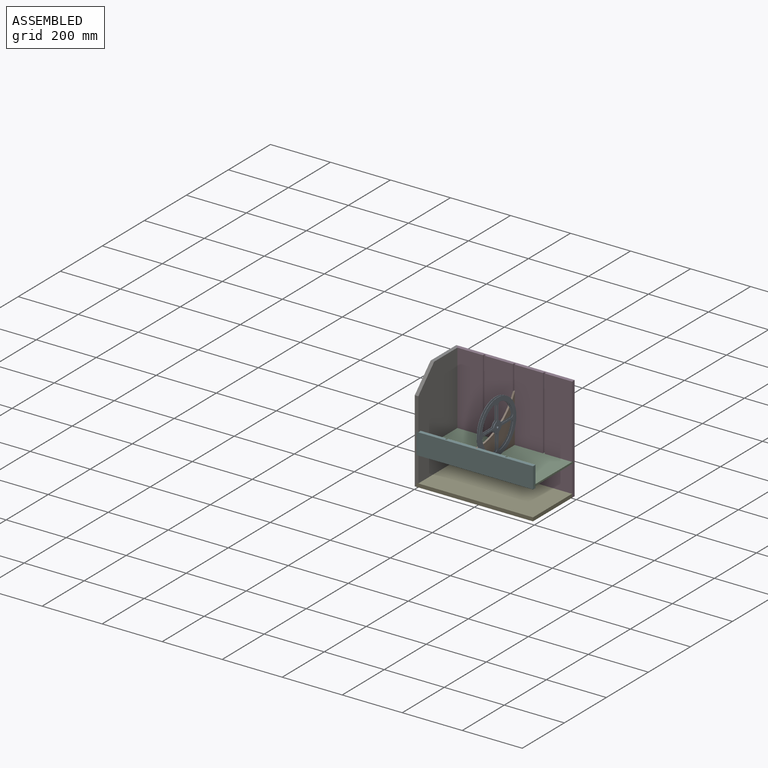
[diagram: assembled view]
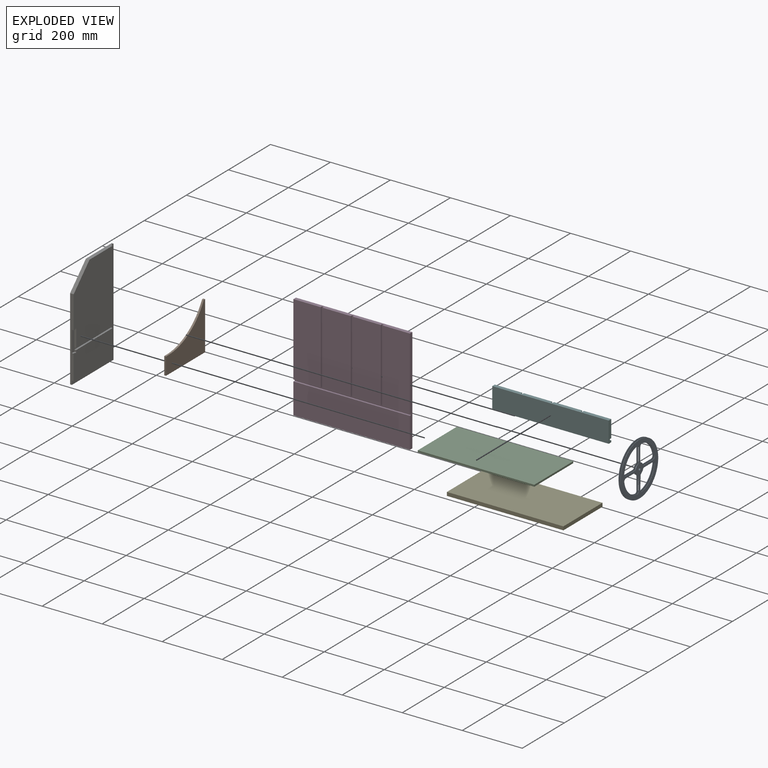
[diagram: exploded view]
GUIDED TOUR — MATED ASSEMBLY (Onshape document a16f4ff0c23ec9828e6b95ff, AutoMate assembly a16f4ff0c23ec9828e6b95ff_91c9aadeaeb00010fbe6a718_039b03f0357e371f45cd246d_default)

This assembly has 7 components, labeled P0..P6 below (a component is one placed occurrence of a part; the same part can appear more than once), held together by 6 mates. A mate is a constraint between two components; its type names the relative motion it leaves free:
  FASTENED — locks the two components together rigidly (no relative motion),
  PARALLEL — keeps the two listed directions parallel.
Axis/direction vectors are unit vectors and 'through' points are millimeter coordinates, both in the assembly's world frame.

MATES
  1. FASTENED "Fastened 5": P6 <-> P4, direction (1.000, 0.000, 0.000) through (6.00, -198.00, 12.00) mm
  2. FASTENED "Fastened 4": P6 <-> P5, direction (1.000, 0.000, 0.000) through (6.00, -198.00, 96.00) mm
  3. FASTENED "Fastened 6": P1 <-> P5, direction (1.000, 0.000, 0.000) through (203.00, -192.00, 166.00) mm
  4. FASTENED "Fastened 2": P3 <-> P6, direction (-1.000, 0.000, 0.000) through (6.00, 0.00, 0.00) mm
  5. PARALLEL "Parallel 1": P0 <-> P1, direction (-1.000, 0.000, 0.000) through (202.12, -103.45, 199.06) mm
  6. FASTENED "Fastened 3": P2 <-> P5, direction (-1.000, 0.000, 0.000) through (394.00, -192.00, 108.00) mm

ASSEMBLY ORDER
  1. P2 — the base component [order verified]
  2. P5 [order verified]
  3. P3 [order verified]
  4. P1 [order verified]
  5. P4 [order verified]
  6. P0 [order verified]
  7. P6 [order verified]
Order-tag legend:
  [order verified] — this step's position reverses a verified removal order: the component was checked to insert without passing through the ones already placed.

Of the 7 components, 1 carries the full construction recipe — the FeatureScript program that regenerates the part's solid from scratch; the rest are supplied as boundary geometry only.
Each toured component is shown spotlighted twice — in the assembled view, then in the exploded view, where a leader line traces a displaced component back to its assembled socket (saturated green if recipe-attached, orange if geometry-only; every other component desaturated gray) — followed by its recipe or geometry summary and the mates that hold it.
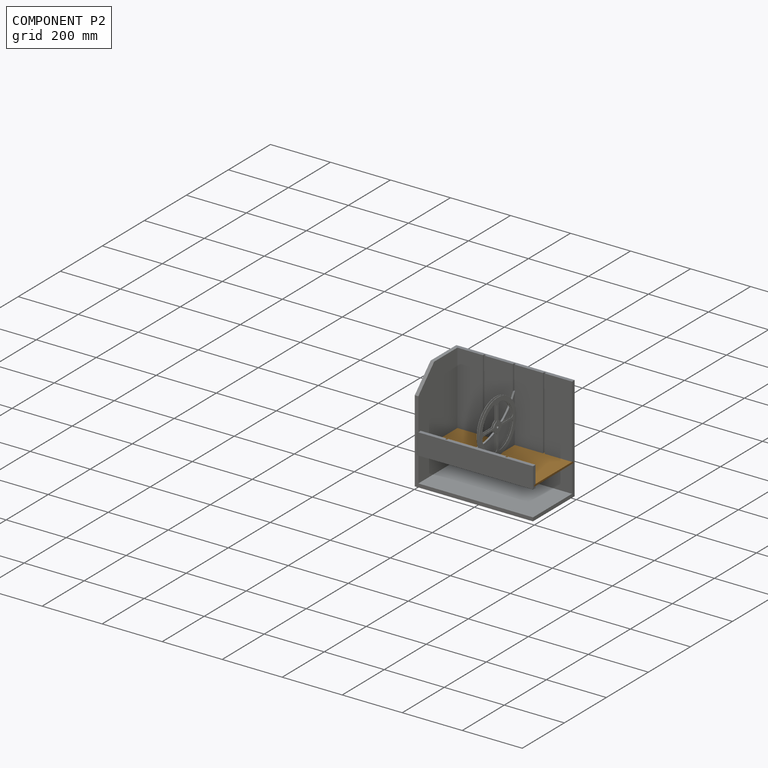
[diagram: component P2 — assembled]
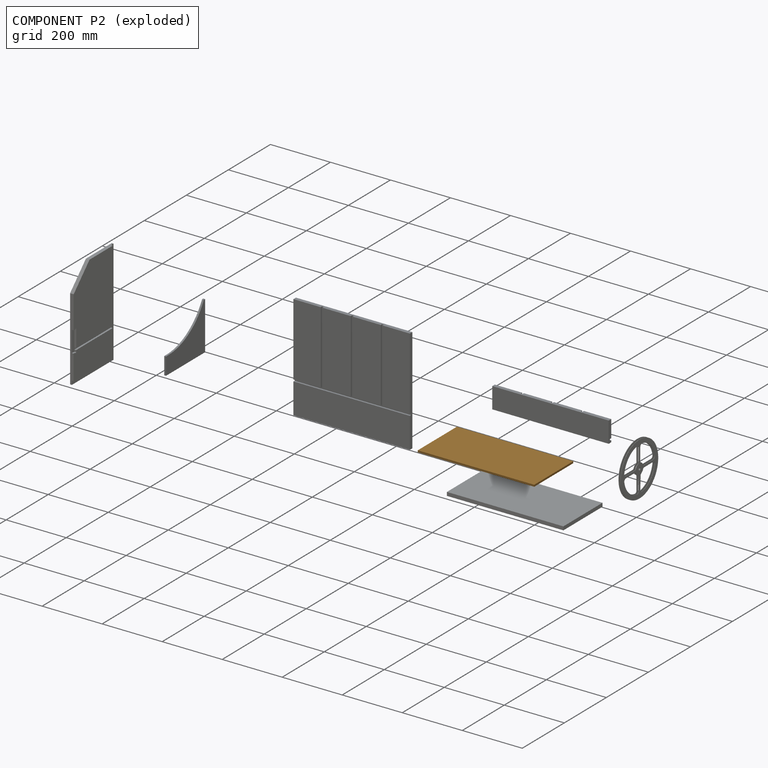
[diagram: component P2 — exploded]
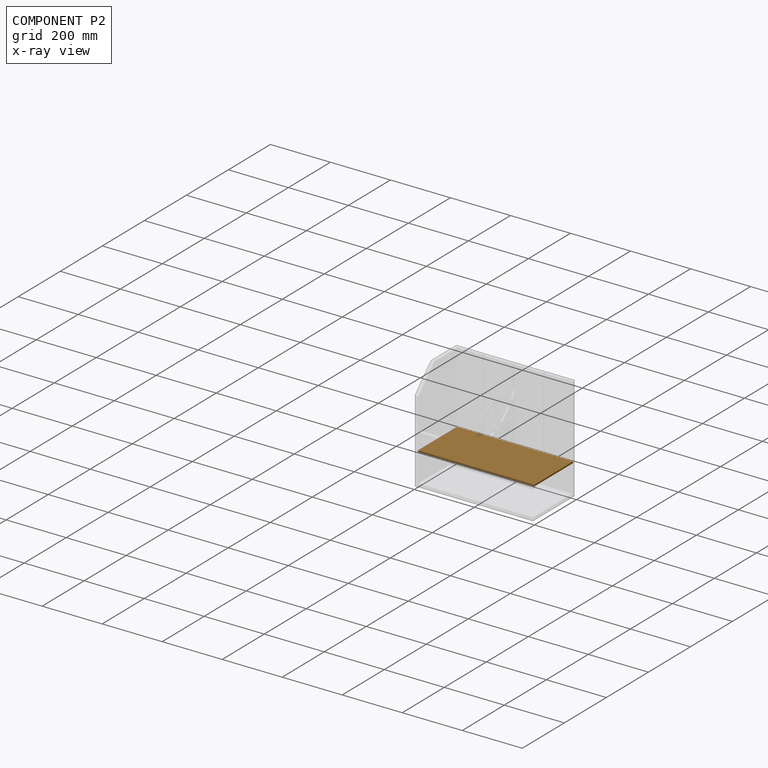
[diagram: component P2 — x-ray view]
COMPONENT P2 — geometry summary (no construction recipe available for this part):
  bounding box: 388.0 x 186.0 x 6.0 mm
  B-rep topology: 1 solid, 6 faces, 24 edges
  volume: 433008 mm^3 (100% of its bounding box)
  symmetry: 2-fold rotationally symmetric about the x axis; 2-fold rotationally symmetric about the y axis; 2-fold rotationally symmetric about the z axis; mirror-symmetric across its x mid-plane, y mid-plane, z mid-plane
Held by: FASTENED mate "Fastened 3" to P5.
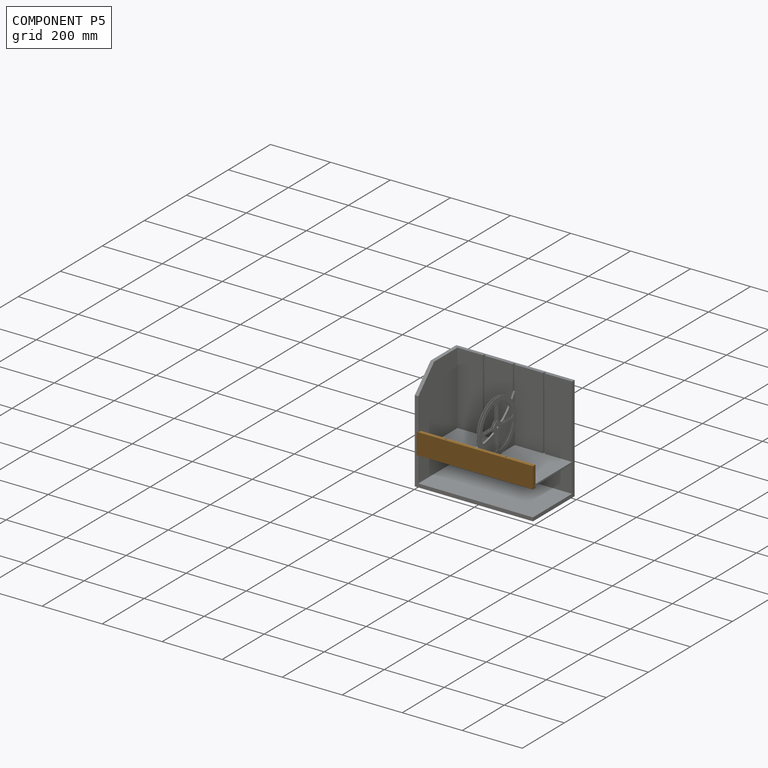
[diagram: component P5 — assembled]
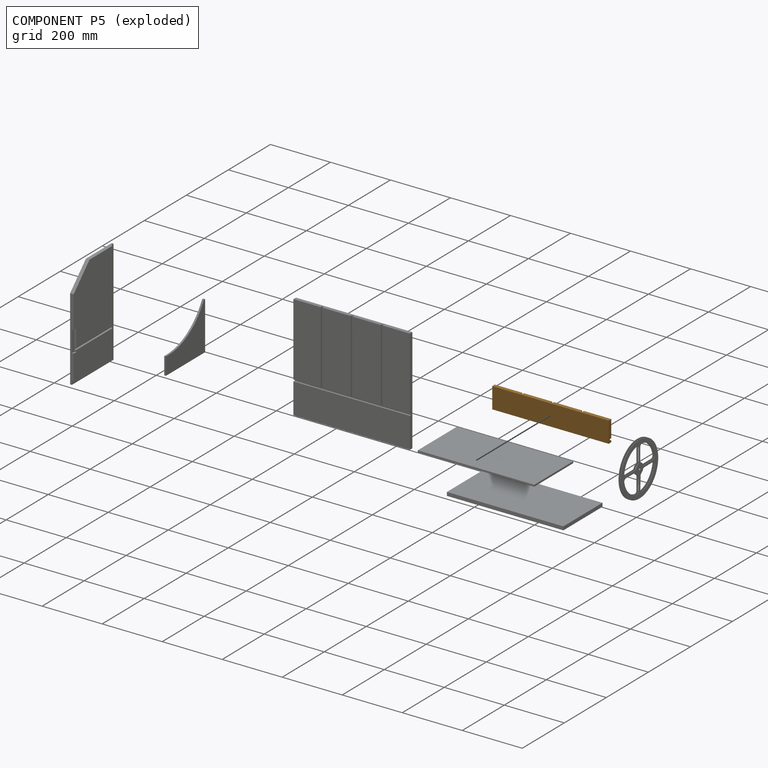
[diagram: component P5 — exploded]
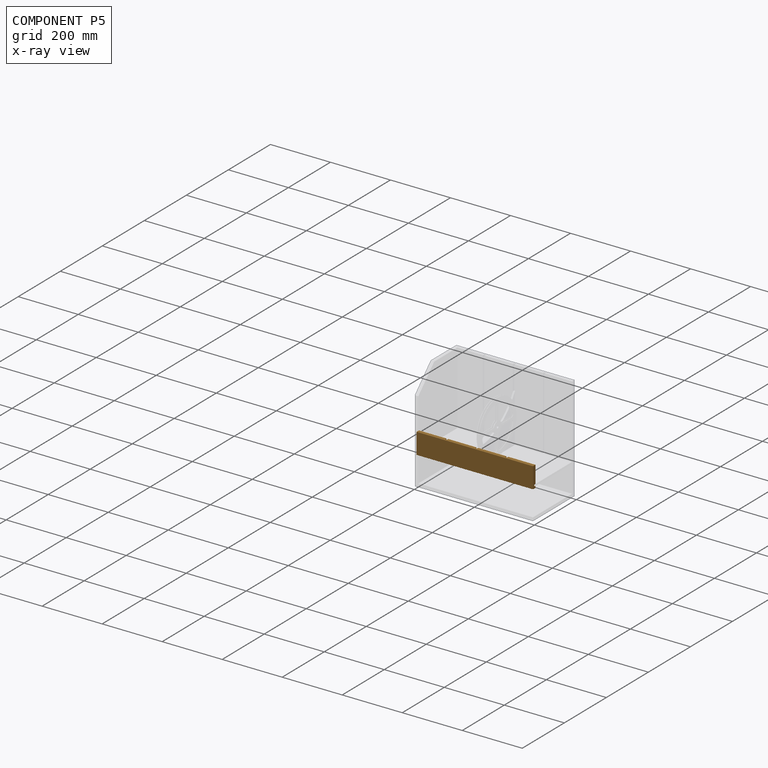
[diagram: component P5 — x-ray view]
COMPONENT P5 — geometry summary (no construction recipe available for this part):
  bounding box: 388.0 x 70.0 x 12.0 mm
  B-rep topology: 1 solid, 22 faces, 120 edges
  volume: 305688 mm^3 (94% of its bounding box)
  symmetry: mirror-symmetric across its y mid-plane
Held by: FASTENED mate "Fastened 4" to P6; FASTENED mate "Fastened 6" to P1; FASTENED mate "Fastened 3" to P2.
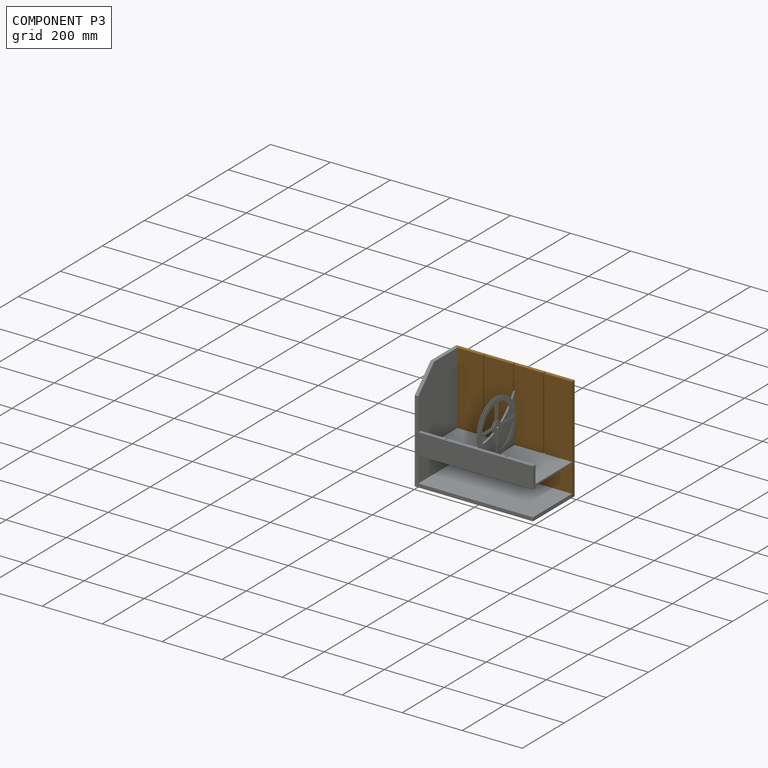
[diagram: component P3 — assembled]
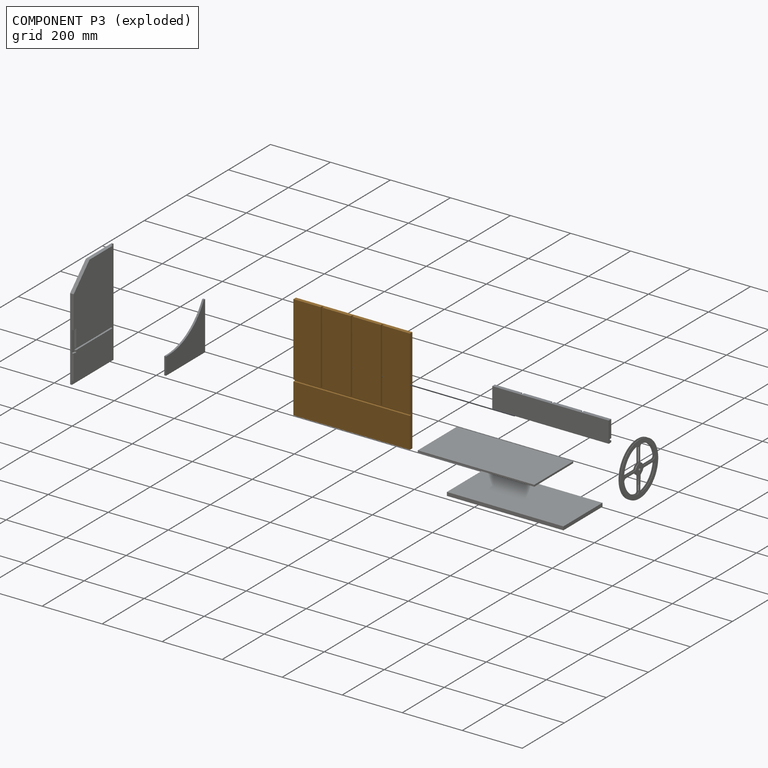
[diagram: component P3 — exploded]
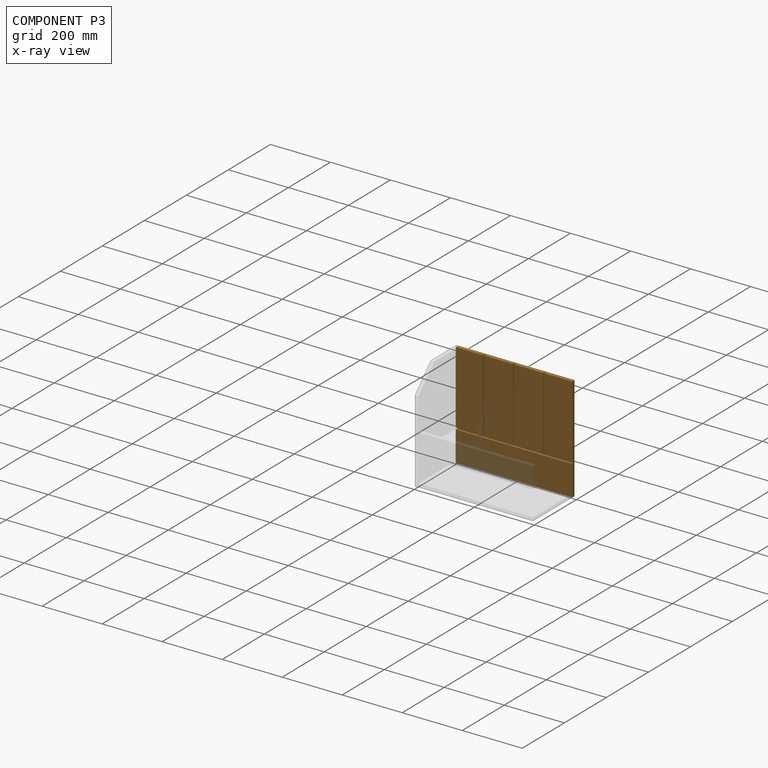
[diagram: component P3 — x-ray view]
COMPONENT P3 — geometry summary (no construction recipe available for this part):
  bounding box: 388.0 x 350.0 x 12.0 mm
  B-rep topology: 1 solid, 22 faces, 120 edges
  volume: 1589496 mm^3 (98% of its bounding box)
  symmetry: mirror-symmetric across its y mid-plane
Held by: FASTENED mate "Fastened 2" to P6.
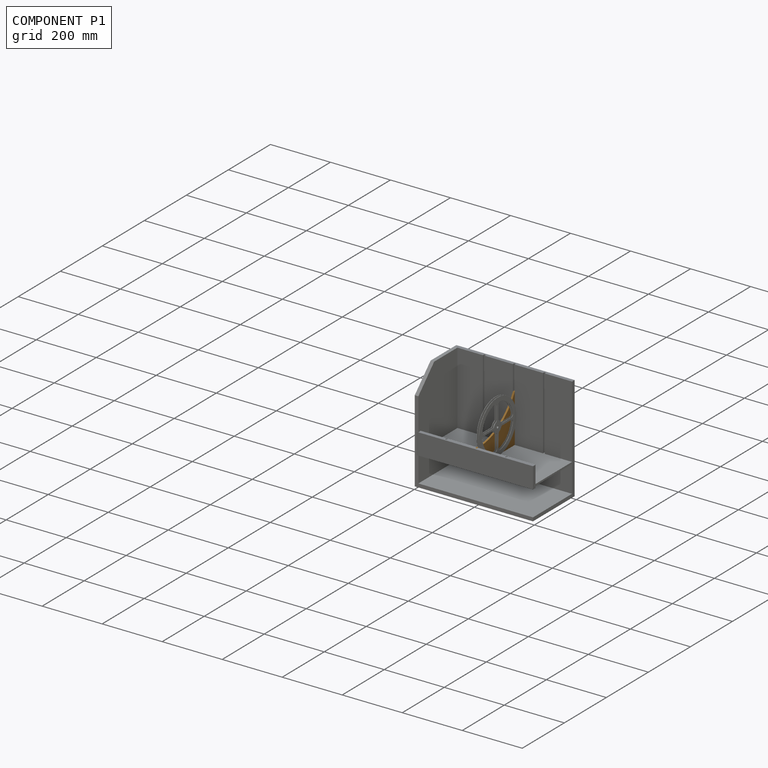
[diagram: component P1 — assembled]
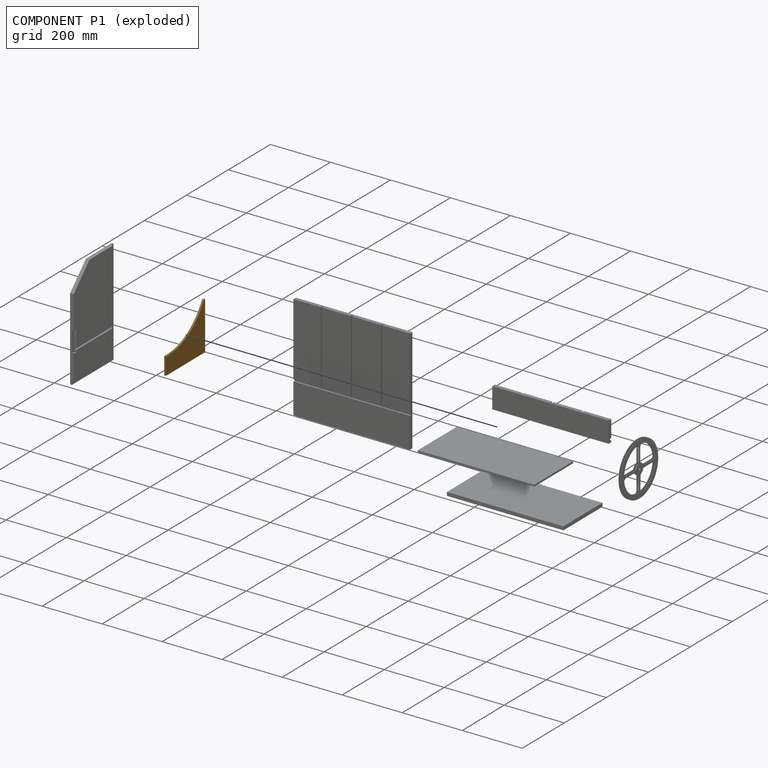
[diagram: component P1 — exploded]
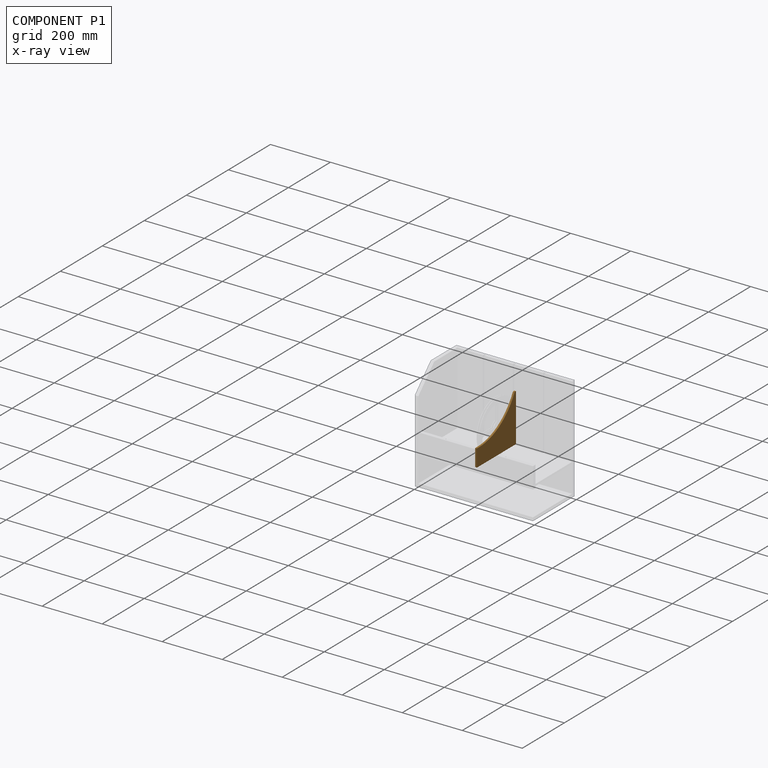
[diagram: component P1 — x-ray view]
COMPONENT P1 — geometry summary (no construction recipe available for this part):
  bounding box: 186.0 x 160.0 x 6.0 mm
  B-rep topology: 1 solid, 8 faces, 36 edges
  volume: 98316 mm^3 (55% of its bounding box)
  symmetry: mirror-symmetric across its y mid-plane
Held by: FASTENED mate "Fastened 6" to P5; PARALLEL mate "Parallel 1" to P0.
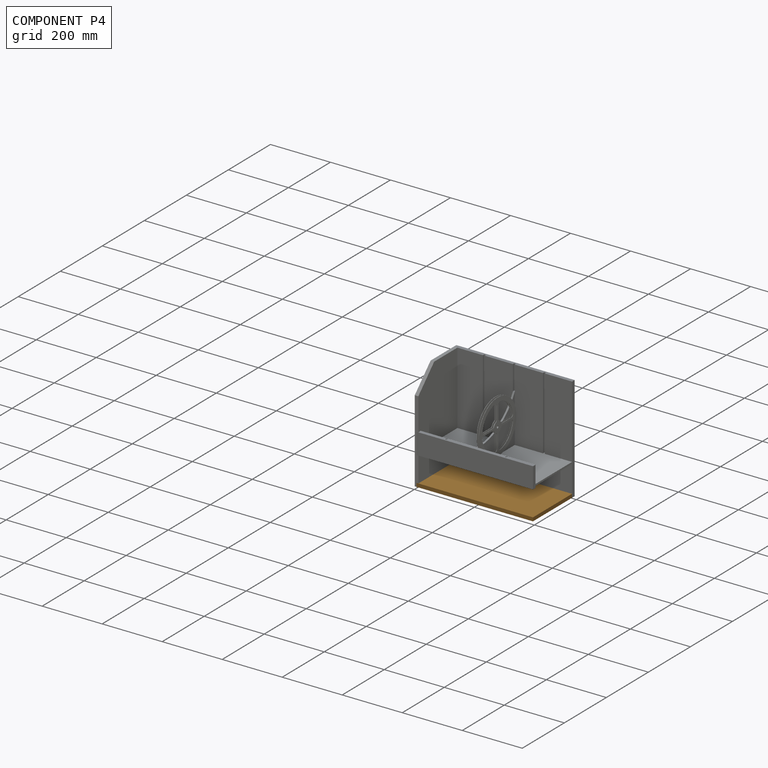
[diagram: component P4 — assembled]
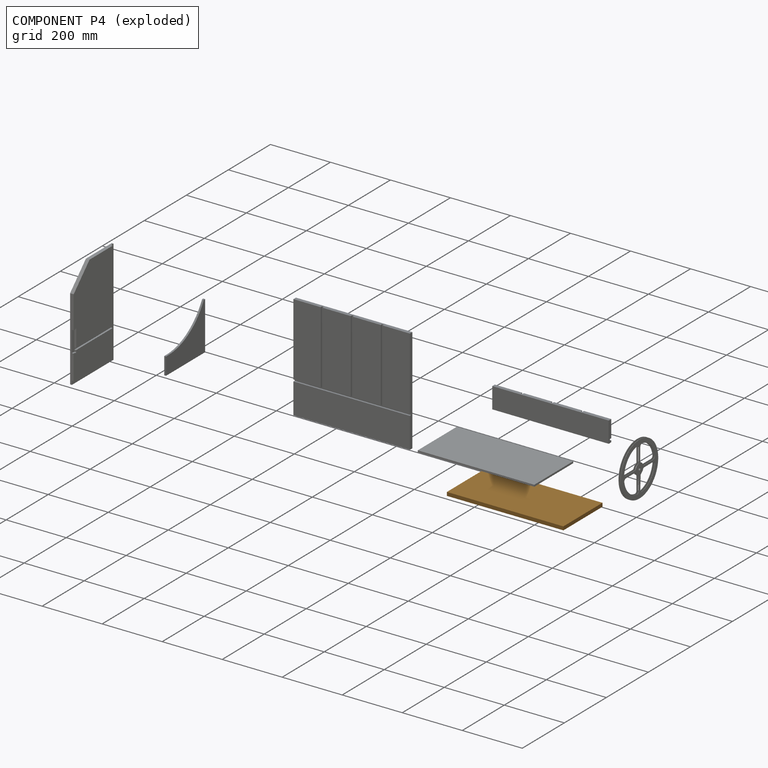
[diagram: component P4 — exploded]
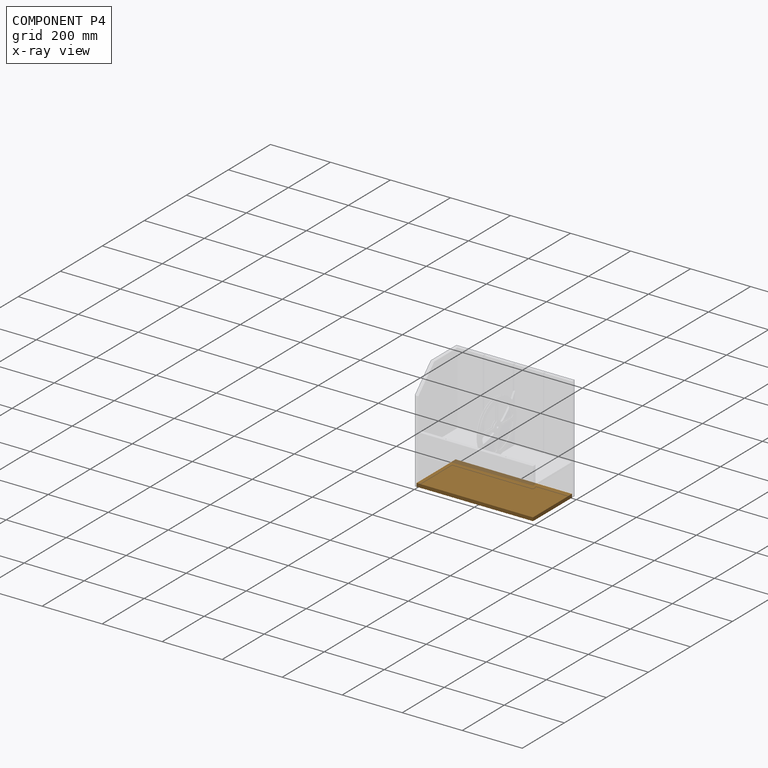
[diagram: component P4 — x-ray view]
COMPONENT P4 — geometry summary (no construction recipe available for this part):
  bounding box: 388.0 x 186.0 x 12.0 mm
  B-rep topology: 1 solid, 6 faces, 24 edges
  volume: 866016 mm^3 (100% of its bounding box)
  symmetry: 2-fold rotationally symmetric about the x axis; 2-fold rotationally symmetric about the y axis; 2-fold rotationally symmetric about the z axis; mirror-symmetric across its x mid-plane, y mid-plane, z mid-plane
Held by: FASTENED mate "Fastened 5" to P6.
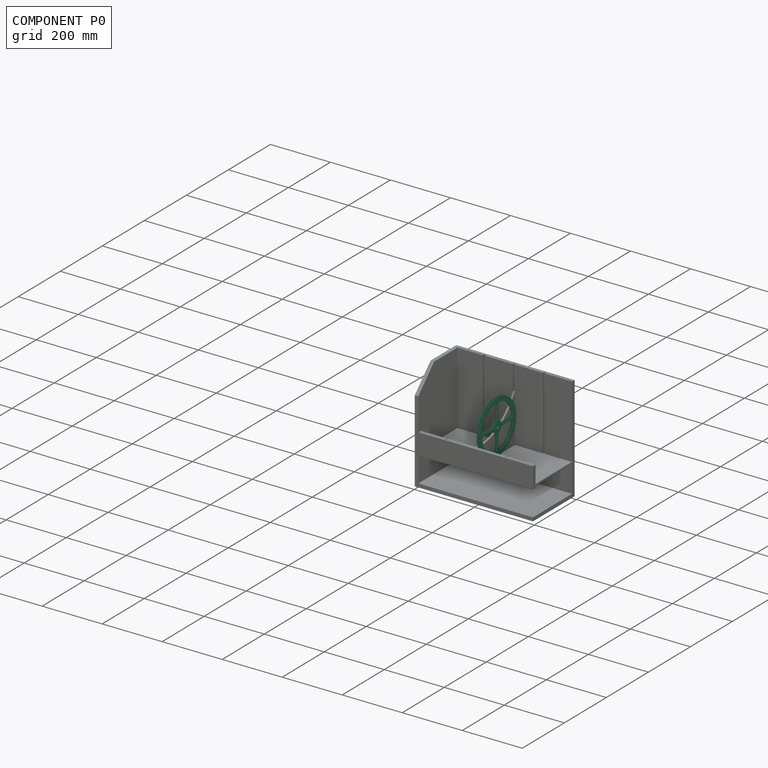
[diagram: component P0 — assembled]
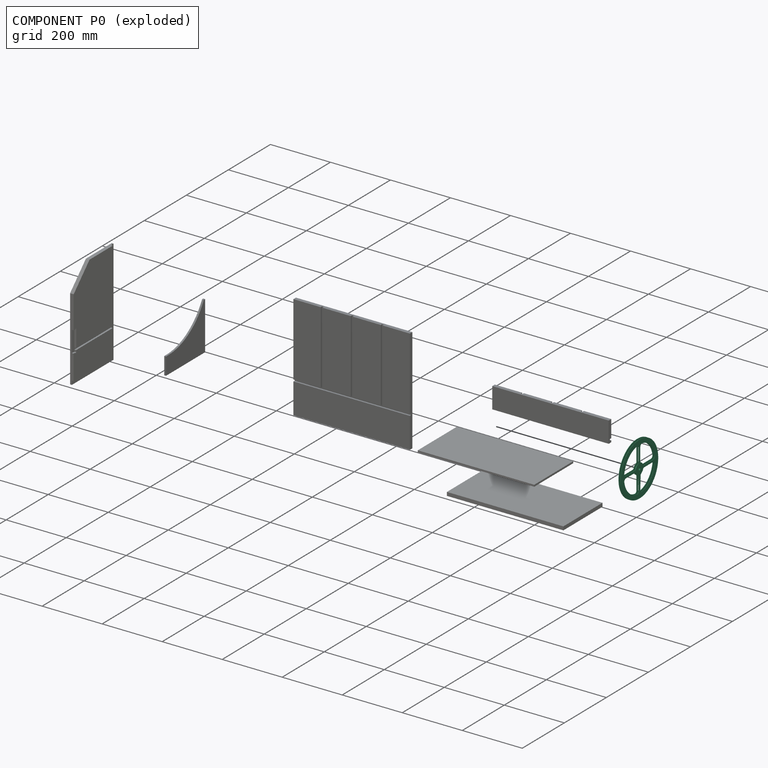
[diagram: component P0 — exploded]
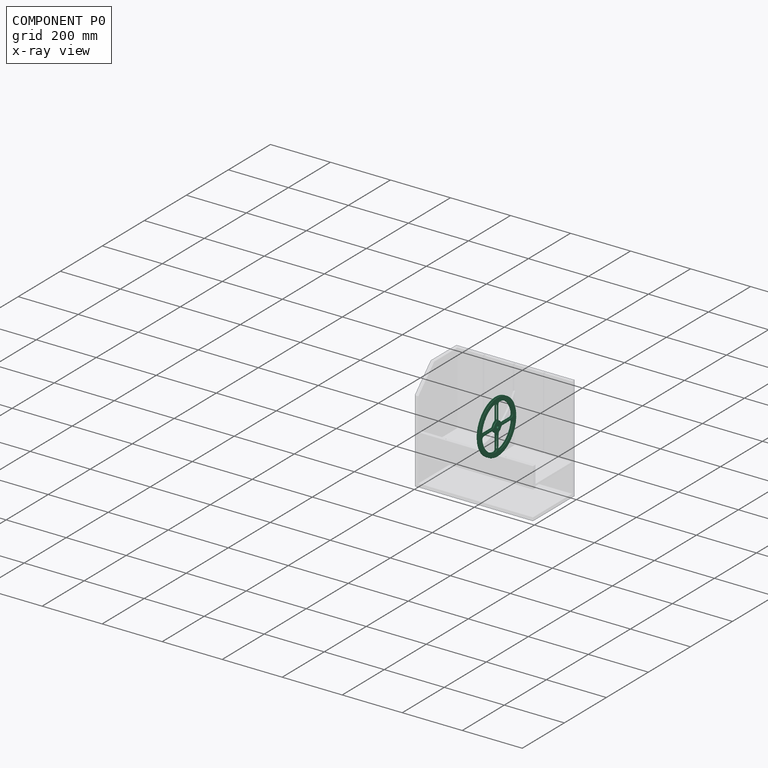
[diagram: component P0 — x-ray view]
COMPONENT P0 — recipe-attached (CADFS 00826286, mesh-verified: the recipe's output STEP matches this component's geometry to below the mesh-comparison resolution (tessellation chordal tolerance ~0.377 mm)).
Held by: PARALLEL mate "Parallel 1" to P1.
Construction recipe (FeatureScript — the CAD program that rebuilds this solid; sketch coordinates are in the units given by the * unit suffixes, e.g. mm):

FeatureScript 1511;
import(path : "onshape/std/geometry.fs", version : "1511.0");
import(path : "onshape/std/common.fs", version : "1511.0");
const mm = millimeter;
const VERTEX = EntityType.VERTEX;
const EDGE = EntityType.EDGE;
const FACE = EntityType.FACE;
const BODY = EntityType.BODY;
function v(x, y){return vector(x, y);}
function OD(order){return orderDisambiguation(order);}
function OSD(set){return originalSetDisambiguation(set);}
function TD(topology){return topologyDisambiguation(topology);}
function TDD(query){return trueDependencyDisambiguation(query);}
function sQuery(a, b, c) {return sketchEntityQuery(a, b, c);}

annotation { "Feature Type Name" : "Feature", "Feature Type Description" : "" }
export const myFeature = defineFeature(function(context is Context, id is Id, definition is map)
    precondition{}
    {
        {
            var Q0;
            Q0=qCreatedBy(makeId("Top.planeOp"),FACE);
            var sketch = newSketch(context, id + "F0", { "sketchPlane" : qUnion([Q0])});
            skCircle(sketch, "E0", {"center": v(0, 0) * mm, "radius": 88.9 * mm});
            skArc(sketch, "E1", {"start": v(-12.9, 72.65) * mm, "mid": v(-52.17, 52.17) * mm, "end": v(-72.65, 12.9) * mm});
            skLineSegment(sketch, "E2", {"start": v(-64.77, 3.5) * mm, "end": v(-22.27, 3.5) * mm});
            skLineSegment(sketch, "E3", {"start": v(-3.5, 64.77) * mm, "end": v(-3.5, 22.27) * mm});
            skLineSegment(sketch, "E4.MirrorCS", {"start": v(-64.77, -3.5) * mm, "end": v(-22.27, -3.5) * mm});
            skLineSegment(sketch, "E5.MirrorCS", {"start": v(3.5, 64.77) * mm, "end": v(3.5, 22.27) * mm});
            skArc(sketch, "E6.trimOffspring", {"start": v(72.65, 12.9) * mm, "mid": v(52.17, 52.17) * mm, "end": v(12.9, 72.65) * mm});
            skArc(sketch, "E7.trimOffspring", {"start": v(12.9, -72.65) * mm, "mid": v(52.17, -52.17) * mm, "end": v(72.65, -12.9) * mm});
            skArc(sketch, "E8.trimOffspring", {"start": v(-72.65, -12.9) * mm, "mid": v(-52.17, -52.17) * mm, "end": v(-12.9, -72.65) * mm});
            skPoint(sketch, "E9.visualSharp", {"position": v(-3.5, 73.7) * mm});
            skArc(sketch, "E9.filletArc", {"start": v(-3.5, 64.77) * mm, "mid": v(-6.36, 70.9) * mm, "end": v(-12.9, 72.65) * mm});
            skPoint(sketch, "E10.visualSharp", {"position": v(3.5, 73.7) * mm});
            skArc(sketch, "E10.filletArc", {"start": v(12.9, 72.65) * mm, "mid": v(6.36, 70.9) * mm, "end": v(3.5, 64.77) * mm});
            skPoint(sketch, "E11.visualSharp", {"position": v(73.7, 3.5) * mm});
            skArc(sketch, "E11.filletArc", {"start": v(64.77, 3.5) * mm, "mid": v(70.9, 6.36) * mm, "end": v(72.65, 12.9) * mm});
            skPoint(sketch, "E12.visualSharp", {"position": v(73.7, -3.5) * mm});
            skArc(sketch, "E12.filletArc", {"start": v(72.65, -12.9) * mm, "mid": v(70.9, -6.36) * mm, "end": v(64.77, -3.5) * mm});
            skPoint(sketch, "E13.visualSharp", {"position": v(3.5, -73.7) * mm});
            skArc(sketch, "E13.filletArc", {"start": v(3.5, -64.77) * mm, "mid": v(6.36, -70.9) * mm, "end": v(12.9, -72.65) * mm});
            skPoint(sketch, "E14.visualSharp", {"position": v(-3.5, -73.7) * mm});
            skArc(sketch, "E14.filletArc", {"start": v(-12.9, -72.65) * mm, "mid": v(-6.36, -70.9) * mm, "end": v(-3.5, -64.77) * mm});
            skPoint(sketch, "E15.visualSharp", {"position": v(-73.7, -3.5) * mm});
            skArc(sketch, "E15.filletArc", {"start": v(-64.77, -3.5) * mm, "mid": v(-70.9, -6.36) * mm, "end": v(-72.65, -12.9) * mm});
            skPoint(sketch, "E16.visualSharp", {"position": v(-73.7, 3.5) * mm});
            skArc(sketch, "E16.filletArc", {"start": v(-72.65, 12.9) * mm, "mid": v(-70.9, 6.36) * mm, "end": v(-64.77, 3.5) * mm});
            skArc(sketch, "E17", {"start": v(16.75, 7.15) * mm, "mid": v(12.88, 12.88) * mm, "end": v(7.15, 16.75) * mm});
            skLineSegment(sketch, "E18.trimOffspring", {"start": v(3.5, -22.27) * mm, "end": v(3.5, -64.77) * mm});
            skLineSegment(sketch, "E19.trimOffspring", {"start": v(-3.5, -22.27) * mm, "end": v(-3.5, -64.77) * mm});
            skLineSegment(sketch, "E20.trimOffspring", {"start": v(22.27, 3.5) * mm, "end": v(64.77, 3.5) * mm});
            skLineSegment(sketch, "E21.trimOffspring", {"start": v(21.3, -5.11) * mm, "end": v(64.77, -3.5) * mm});
            skCircle(sketch, "E22", {"center": v(0, 0) * mm, "radius": 4 * mm});
            skArc(sketch, "E23.trimOffspring", {"start": v(7.15, -16.75) * mm, "mid": v(12.4, -13.34) * mm, "end": v(16.18, -8.36) * mm});
            skArc(sketch, "E24.trimOffspring", {"start": v(-16.75, -7.15) * mm, "mid": v(-12.88, -12.88) * mm, "end": v(-7.15, -16.75) * mm});
            skArc(sketch, "E25.trimOffspring", {"start": v(-7.15, 16.75) * mm, "mid": v(-12.88, 12.88) * mm, "end": v(-16.75, 7.15) * mm});
            skPoint(sketch, "E26.visualSharp", {"position": v(-3.5, 17.88) * mm});
            skArc(sketch, "E26.filletArc", {"start": v(-7.15, 16.75) * mm, "mid": v(-4.5, 18.97) * mm, "end": v(-3.5, 22.27) * mm});
            skPoint(sketch, "E27.visualSharp", {"position": v(17.88, 3.5) * mm});
            skArc(sketch, "E27.filletArc", {"start": v(16.75, 7.15) * mm, "mid": v(18.97, 4.5) * mm, "end": v(22.27, 3.5) * mm});
            skPoint(sketch, "E28.visualSharp", {"position": v(17.44, -5.26) * mm});
            skArc(sketch, "E28.filletArc", {"start": v(21.3, -5.11) * mm, "mid": v(18.3, -6.04) * mm, "end": v(16.18, -8.36) * mm});
            skPoint(sketch, "E29.visualSharp", {"position": v(3.5, -17.88) * mm});
            skArc(sketch, "E29.filletArc", {"start": v(7.15, -16.75) * mm, "mid": v(4.5, -18.97) * mm, "end": v(3.5, -22.27) * mm});
            skPoint(sketch, "E30.visualSharp", {"position": v(-3.5, -17.88) * mm});
            skArc(sketch, "E30.filletArc", {"start": v(-3.5, -22.27) * mm, "mid": v(-4.5, -18.97) * mm, "end": v(-7.15, -16.75) * mm});
            skPoint(sketch, "E31.visualSharp", {"position": v(-17.88, -3.5) * mm});
            skArc(sketch, "E31.filletArc", {"start": v(-16.75, -7.15) * mm, "mid": v(-18.97, -4.5) * mm, "end": v(-22.27, -3.5) * mm});
            skPoint(sketch, "E32.visualSharp", {"position": v(-17.88, 3.5) * mm});
            skArc(sketch, "E32.filletArc", {"start": v(-22.27, 3.5) * mm, "mid": v(-18.97, 4.5) * mm, "end": v(-16.75, 7.15) * mm});
            skPoint(sketch, "E33.visualSharp", {"position": v(3.5, 17.88) * mm});
            skArc(sketch, "E33.filletArc", {"start": v(3.5, 22.27) * mm, "mid": v(4.5, 18.97) * mm, "end": v(7.15, 16.75) * mm});
            skCircle(sketch, "E34", {"center": v(0, 0) * mm, "radius": 10.46 * mm});
            skSolve(sketch);
        }
        {
            var Q0;
            Q0=makeQuery(id+"F0.imprint","IMPRINT",FACE,{"disambiguationData":[TD([[makeQuery(id+"F0.imprint","IMPRINT",EDGE,{"derivedFrom":sQuery(id+"F0.wireOp",EDGE,"E0")}),1.0]])]});
            var Q1;
            Q1=makeQuery(id+"F0.imprint","IMPRINT",FACE,{"disambiguationData":[TD([[makeQuery(id+"F0.imprint","IMPRINT",EDGE,{"derivedFrom":sQuery(id+"F0.wireOp",EDGE,"E22")}),-1.0]])]});
            extrude(context, id + "F1", {"entities" : qUnion([Q0, Q1]), "depth" : 1 * mm, "offsetDistance" : 25 * mm});
        }
        {
            var Q0;
            Q0=qCreatedBy(makeId("Top.planeOp"),FACE);
            cPlane(context, id + "F2", {"entities" : qUnion([Q0]), "cplaneType" : CPlaneType.OFFSET, "offset" : 7 * mm, "width" : 150 * mm, "height" : 150 * mm});
        }
        {
            var Q0;
            Q0=qCreatedBy(id+"F2.planeOp",FACE);
            var sketch = newSketch(context, id + "F3", { "sketchPlane" : qUnion([Q0])});
            skCircle(sketch, "E35.0.0", {"center": v(0, 0) * mm, "radius": 88.9 * mm});
            skArc(sketch, "E36.0.0", {"start": v(-16.75, 7.15) * mm, "mid": v(-12.88, 12.88) * mm, "end": v(-7.15, 16.75) * mm});
            skArc(sketch, "E36.0.1", {"start": v(-7.15, 16.75) * mm, "mid": v(-4.5, 18.97) * mm, "end": v(-3.5, 22.27) * mm});
            skLineSegment(sketch, "E36.0.2", {"start": v(-3.5, 22.27) * mm, "end": v(-3.5, 64.77) * mm});
            skArc(sketch, "E36.0.3", {"start": v(-3.5, 64.77) * mm, "mid": v(-6.36, 70.9) * mm, "end": v(-12.9, 72.65) * mm});
            skArc(sketch, "E36.0.4", {"start": v(-12.9, 72.65) * mm, "mid": v(-52.17, 52.17) * mm, "end": v(-72.65, 12.9) * mm});
            skArc(sketch, "E36.0.5", {"start": v(-72.65, 12.9) * mm, "mid": v(-70.9, 6.36) * mm, "end": v(-64.77, 3.5) * mm});
            skLineSegment(sketch, "E36.0.6", {"start": v(-64.77, 3.5) * mm, "end": v(-22.27, 3.5) * mm});
            skArc(sketch, "E36.0.7", {"start": v(-22.27, 3.5) * mm, "mid": v(-18.97, 4.5) * mm, "end": v(-16.75, 7.15) * mm});
            skLineSegment(sketch, "E37.0.0", {"start": v(-3.5, -64.77) * mm, "end": v(-3.5, -22.27) * mm});
            skArc(sketch, "E37.0.1", {"start": v(-3.5, -22.27) * mm, "mid": v(-4.5, -18.97) * mm, "end": v(-7.15, -16.75) * mm});
            skArc(sketch, "E37.0.2", {"start": v(-7.15, -16.75) * mm, "mid": v(-12.88, -12.88) * mm, "end": v(-16.75, -7.15) * mm});
            skArc(sketch, "E37.0.3", {"start": v(-16.75, -7.15) * mm, "mid": v(-18.97, -4.5) * mm, "end": v(-22.27, -3.5) * mm});
            skLineSegment(sketch, "E37.0.4", {"start": v(-22.27, -3.5) * mm, "end": v(-64.77, -3.5) * mm});
            skArc(sketch, "E37.0.5", {"start": v(-64.77, -3.5) * mm, "mid": v(-70.9, -6.36) * mm, "end": v(-72.65, -12.9) * mm});
            skArc(sketch, "E37.0.6", {"start": v(-72.65, -12.9) * mm, "mid": v(-52.17, -52.17) * mm, "end": v(-12.9, -72.65) * mm});
            skArc(sketch, "E37.0.7", {"start": v(-12.9, -72.65) * mm, "mid": v(-6.36, -70.9) * mm, "end": v(-3.5, -64.77) * mm});
            skArc(sketch, "E38.0.0", {"start": v(16.18, -8.36) * mm, "mid": v(12.4, -13.34) * mm, "end": v(7.15, -16.75) * mm});
            skArc(sketch, "E38.0.1", {"start": v(7.15, -16.75) * mm, "mid": v(4.5, -18.97) * mm, "end": v(3.5, -22.27) * mm});
            skLineSegment(sketch, "E38.0.2", {"start": v(3.5, -22.27) * mm, "end": v(3.5, -64.77) * mm});
            skArc(sketch, "E38.0.3", {"start": v(3.5, -64.77) * mm, "mid": v(6.36, -70.9) * mm, "end": v(12.9, -72.65) * mm});
            skArc(sketch, "E38.0.4", {"start": v(12.9, -72.65) * mm, "mid": v(52.17, -52.17) * mm, "end": v(72.65, -12.9) * mm});
            skArc(sketch, "E38.0.5", {"start": v(72.65, -12.9) * mm, "mid": v(70.9, -6.36) * mm, "end": v(64.77, -3.5) * mm});
            skLineSegment(sketch, "E38.0.6", {"start": v(64.77, -3.5) * mm, "end": v(21.3, -5.11) * mm});
            skArc(sketch, "E38.0.7", {"start": v(21.3, -5.11) * mm, "mid": v(18.3, -6.04) * mm, "end": v(16.18, -8.36) * mm});
            skArc(sketch, "E39.0.0", {"start": v(7.15, 16.75) * mm, "mid": v(12.88, 12.88) * mm, "end": v(16.75, 7.15) * mm});
            skArc(sketch, "E39.0.1", {"start": v(16.75, 7.15) * mm, "mid": v(18.97, 4.5) * mm, "end": v(22.27, 3.5) * mm});
            skLineSegment(sketch, "E39.0.2", {"start": v(22.27, 3.5) * mm, "end": v(64.77, 3.5) * mm});
            skArc(sketch, "E39.0.3", {"start": v(64.77, 3.5) * mm, "mid": v(70.9, 6.36) * mm, "end": v(72.65, 12.9) * mm});
            skArc(sketch, "E39.0.4", {"start": v(72.65, 12.9) * mm, "mid": v(52.17, 52.17) * mm, "end": v(12.9, 72.65) * mm});
            skArc(sketch, "E39.0.5", {"start": v(12.9, 72.65) * mm, "mid": v(6.36, 70.9) * mm, "end": v(3.5, 64.77) * mm});
            skLineSegment(sketch, "E39.0.6", {"start": v(3.5, 64.77) * mm, "end": v(3.5, 22.27) * mm});
            skArc(sketch, "E39.0.7", {"start": v(3.5, 22.27) * mm, "mid": v(4.5, 18.97) * mm, "end": v(7.15, 16.75) * mm});
            skCircle(sketch, "E40.0", {"center": v(0, 0) * mm, "radius": 4 * mm});
            skSolve(sketch);
        }
        {
            var Q0;
            Q0=makeQuery(id+"F0.imprint","IMPRINT",FACE,{"disambiguationData":[TD([[makeQuery(id+"F0.imprint","IMPRINT",EDGE,{"derivedFrom":sQuery(id+"F0.wireOp",EDGE,"E22")}),-1.0]])]});
            extrude(context, id + "F4", {"entities" : qUnion([Q0]), "operationType" : NewBodyOperationType.ADD, "depth" : 8 * mm, "offsetDistance" : 25 * mm});
        }
        {
            var Q0;
            Q0=makeQuery(id+"F3.imprint","IMPRINT",FACE,{"disambiguationData":[TD([[makeQuery(id+"F3.imprint","IMPRINT",EDGE,{"derivedFrom":sQuery(id+"F3.wireOp",EDGE,"E35.0.0")}),1.0]])]});
            extrude(context, id + "F5", {"entities" : qUnion([Q0]), "operationType" : NewBodyOperationType.ADD, "depth" : 1 * mm, "offsetDistance" : 25 * mm});
        }
    });
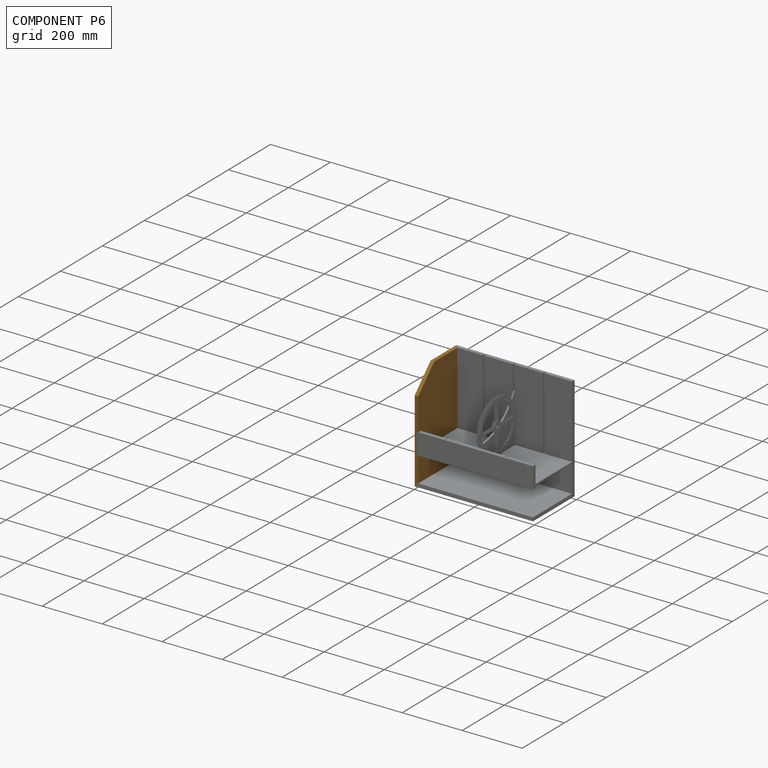
[diagram: component P6 — assembled]
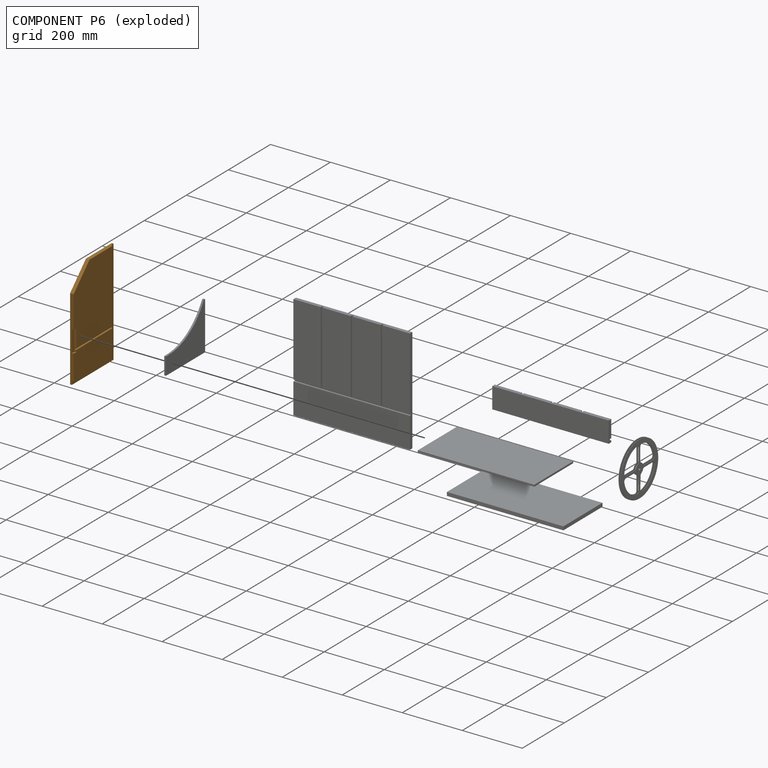
[diagram: component P6 — exploded]
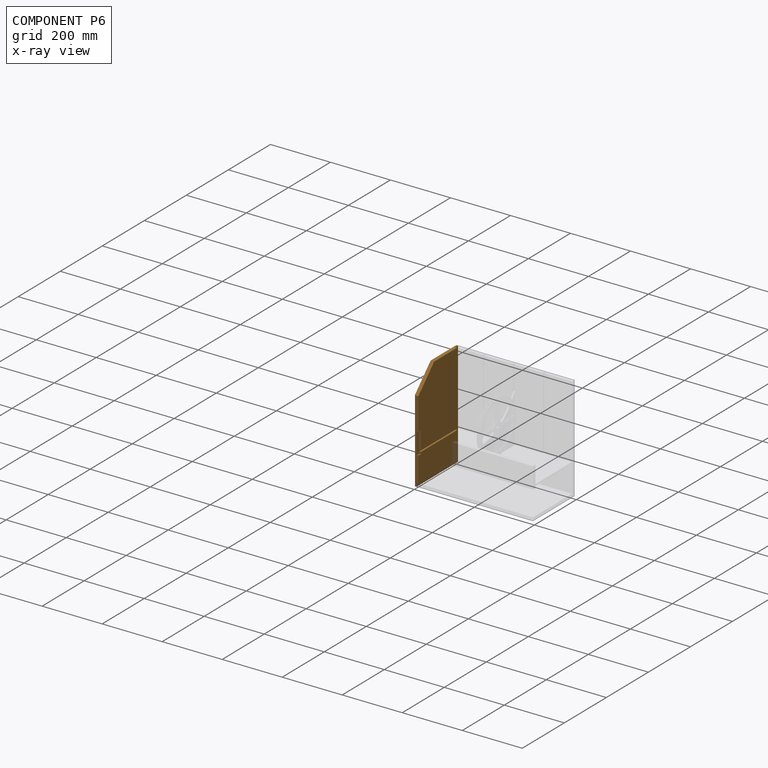
[diagram: component P6 — x-ray view]
COMPONENT P6 — geometry summary (no construction recipe available for this part):
  bounding box: 350.0 x 198.0 x 12.0 mm
  B-rep topology: 1 solid, 20 faces, 108 edges
  volume: 747458 mm^3 (90% of its bounding box)
Held by: FASTENED mate "Fastened 5" to P4; FASTENED mate "Fastened 4" to P5; FASTENED mate "Fastened 2" to P3.
PROVENANCE & LICENSES
Assembly (occurrences, transforms, mates, per-part STEP geometry): AutoMate dataset, Zenodo record 7776208, CC0.
Construction recipes: CADFS (HuggingFace VladPyatov/CADFS, CC-BY-4.0, layered over the ABC dataset), FeatureScript reconstruction programs keyed by ABC model id.
Join: ABC meta listings map ABC model id -> Onshape documentId; within a shared document, parts are matched by geometric signature (bounding-box dims + volume at 0.1% relative tolerance, exact B-rep face/solid counts).
Verification: 1 of this assembly's 7 components carries a recipe attachment, and every attachment is mesh-verified: the CADFS STEP and the AutoMate member STEP were compared as meshes in their shared local frame (symmetric sampled-point-to-mesh distance); worst across the 1 attachment: below the mesh-comparison resolution (tessellation chordal tolerance ~0.377 mm) on a 251 mm part.
Renders: orthographic iso camera (az 35 / el 25); the floor grid conveys scale (grid pitch printed in each image; no ruler). In the exploded view each component is displaced by its stored offset vector: the offsets alone carry the explosion direction (mate normal/axis signs are not orientation cues and do not encode it), and separation distances are assigned per mate-chain, not proportionally to assembly-order depth.
